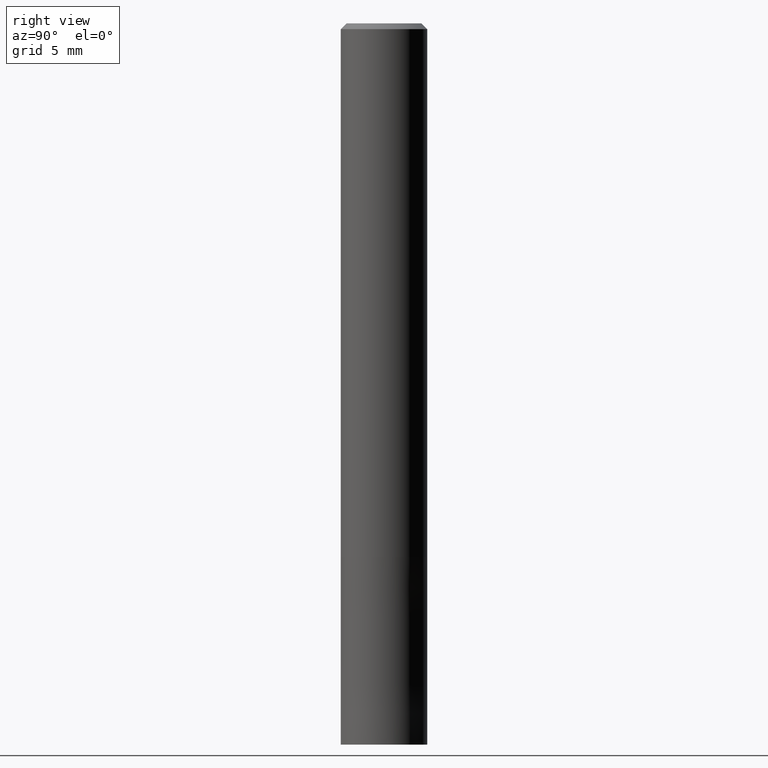
[diagram: clean part render]
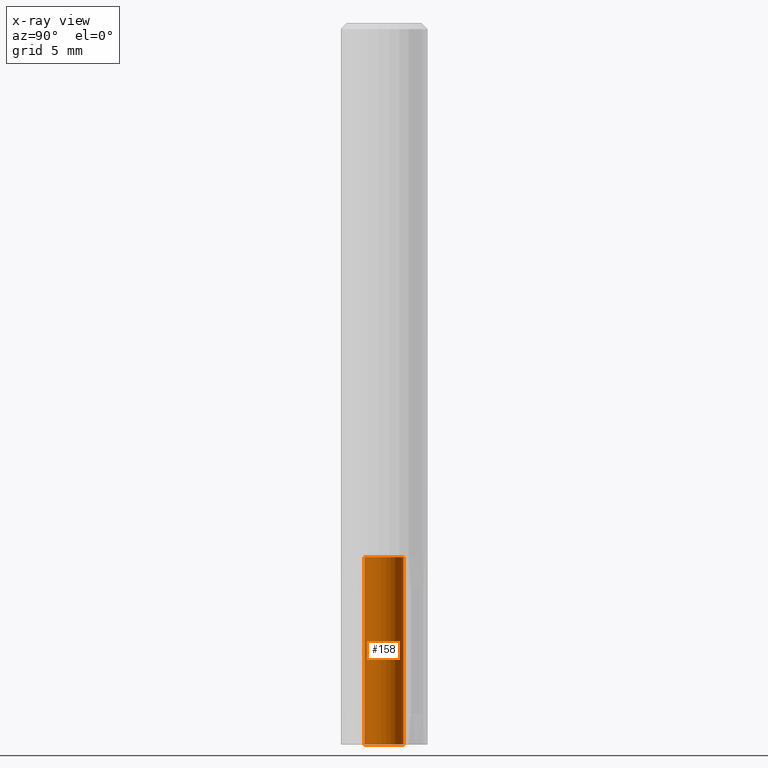
[diagram: x-ray — body ghosted, one internal face saturated and labeled with its STEP entity id]
A machine part, right view, then the same camera in x-ray: the body is ghosted and one INTERNAL B-rep face — a face not visible from any outside direction — is saturated and labeled: STEP entity #158.
In plain terms, the highlighted cylindrical surface (edge-blend (fillet) strip) has radius 1.35 mm, axis along (-0, -0, 1).
Its self-contained STEP definition (entity closure, byte-faithful):
#108=VERTEX_POINT('',#256);
#128=EDGE_CURVE('',#216,#108,#277,.T.);
#142=VERTEX_POINT('',#293);
#148=EDGE_CURVE('',#176,#142,#299,.T.);
#154=EDGE_CURVE('',#216,#176,#306,.T.);
#158=ADVANCED_FACE('',(#310),#311,.F.);
#176=VERTEX_POINT('',#331);
#198=EDGE_CURVE('',#142,#108,#357,.T.);
#216=VERTEX_POINT('',#378);
#256=CARTESIAN_POINT('',(1.65321857766021E-016,-1.35,-37.0));
#277=CIRCLE('',#442,1.35);
#293=CARTESIAN_POINT('',(1.65321857766021E-016,-1.35,-50.0));
#299=CIRCLE('',#471,1.35);
#306=LINE('',#479,#480);
#310=FACE_OUTER_BOUND('',#485,.T.);
#311=CYLINDRICAL_SURFACE('',#486,1.35);
#331=CARTESIAN_POINT('',(0.0,1.35,-50.0));
#357=LINE('',#540,#541);
#378=CARTESIAN_POINT('',(0.0,1.35,-37.0));
#442=AXIS2_PLACEMENT_3D('',#612,#613,#614);
#471=AXIS2_PLACEMENT_3D('',#631,#632,#633);
#479=CARTESIAN_POINT('',(-1.65321857766021E-016,1.35,-43.5));
#480=VECTOR('',#642,1.0);
#485=EDGE_LOOP('',(#647,#648,#649,#650));
#486=AXIS2_PLACEMENT_3D('',#651,#652,#653);
#540=CARTESIAN_POINT('',(1.65321857766021E-016,-1.35,-43.5));
#541=VECTOR('',#711,1.0);
#612=CARTESIAN_POINT('',(0.0,0.0,-37.0));
#613=DIRECTION('',(0.0,0.0,-1.0));
#614=DIRECTION('',(0.0,1.0,0.0));
#631=CARTESIAN_POINT('',(0.0,0.0,-50.0));
#632=DIRECTION('',(0.0,0.0,-1.0));
#633=DIRECTION('',(0.0,1.0,0.0));
#642=DIRECTION('',(0.0,-0.0,-1.0));
#647=ORIENTED_EDGE('',*,*,#154,.T.);
#648=ORIENTED_EDGE('',*,*,#148,.T.);
#649=ORIENTED_EDGE('',*,*,#198,.T.);
#650=ORIENTED_EDGE('',*,*,#128,.F.);
#651=CARTESIAN_POINT('',(0.0,0.0,-43.5));
#652=DIRECTION('',(-0.0,-0.0,1.0));
#653=DIRECTION('',(0.0,1.0,0.0));
#711=DIRECTION('',(0.0,-0.0,1.0));